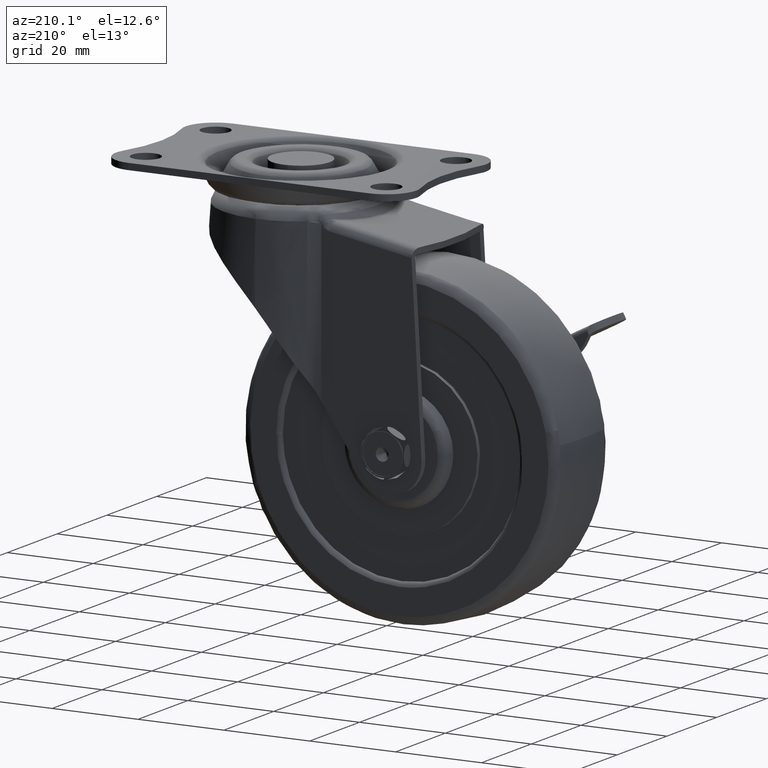
[diagram: clean part render]
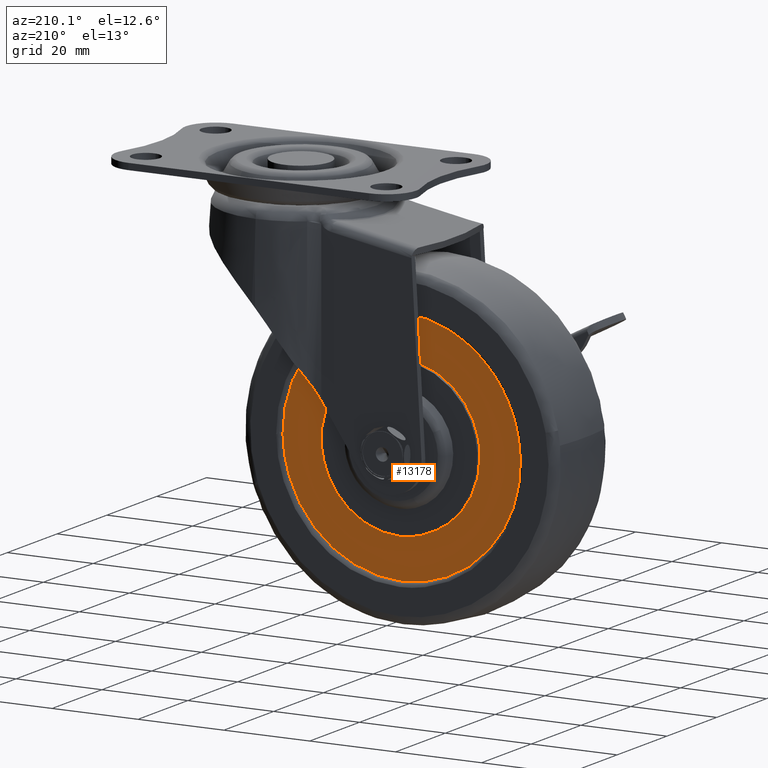
[diagram: same view with one face highlighted and labeled with its STEP entity id]
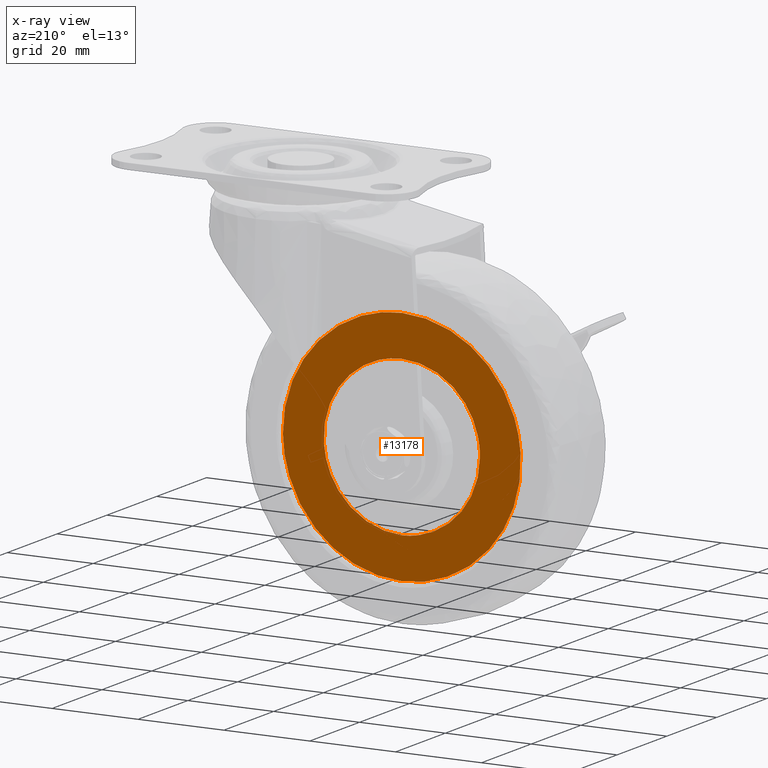
[diagram: x-ray of the same camera — body ghosted, the highlighted face saturated]
A machine part, auxiliary view. The second image highlights one B-rep face of the part: STEP entity #13178.
The next image is the same camera in x-ray: the body ghosted, the highlighted face saturated — about 0% of this face is hidden behind the body in this view.
In plain terms, the highlighted face is a freeform B-spline surface patch.
Its self-contained STEP definition (entity closure, byte-faithful):
#11346=CARTESIAN_POINT('',(-47.198564004429393,9.500000002880958,-52.771294061468822));
#11347=VERTEX_POINT('',#11346);
#11361=CARTESIAN_POINT('',(-29.0,9.500000000000000,-34.799995000000003));
#11362=VERTEX_POINT('',#11361);
#11363=CARTESIAN_POINT('',(-29.0,9.500000000000000,-34.799995000000003));
#11364=CARTESIAN_POINT('',(-46.972718111650863,9.500000000000000,-34.799995000000010));
#11365=CARTESIAN_POINT('',(-47.198564004429386,9.500000002880958,-52.771294061468815));
#11373=(BOUNDED_CURVE()B_SPLINE_CURVE(2,(#11363,#11364,#11365),.UNSPECIFIED.,.F.,.U.)B_SPLINE_CURVE_WITH_KNOTS((3,3),(0.500000000000000,0.747784295920024),.UNSPECIFIED.)CURVE()GEOMETRIC_REPRESENTATION_ITEM()RATIONAL_B_SPLINE_CURVE((1.0,0.709702639986237,0.994854295640090))REPRESENTATION_ITEM(''));
#11374=EDGE_CURVE('',#11362,#11347,#11373,.T.);
#11376=CARTESIAN_POINT('',(-10.844303738539400,9.500000002775501,-54.269141248419800));
#11377=VERTEX_POINT('',#11376);
#11378=CARTESIAN_POINT('',(-10.844303738539406,9.500000002775501,-54.269141248419800));
#11379=CARTESIAN_POINT('',(-10.799998999999998,9.500000000000000,-53.635341943842434));
#11380=CARTESIAN_POINT('',(-10.799999000000000,9.500000000000000,-52.999996000000003));
#11381=CARTESIAN_POINT('',(-10.799999000000001,9.500000000000000,-34.799994999999996));
#11382=CARTESIAN_POINT('',(-29.0,9.500000000000000,-34.799995000000003));
#11390=(BOUNDED_CURVE()B_SPLINE_CURVE(2,(#11378,#11379,#11380,#11381,#11382),.UNSPECIFIED.,.F.,.U.)B_SPLINE_CURVE_WITH_KNOTS((3,2,3),(0.237833686534879,0.250000000000000,0.500000000000000),.UNSPECIFIED.)CURVE()GEOMETRIC_REPRESENTATION_ITEM()RATIONAL_B_SPLINE_CURVE((0.972879876386525,0.985746277152429,1.0,0.707106781186548,1.0))REPRESENTATION_ITEM(''));
#11391=EDGE_CURVE('',#11377,#11362,#11390,.T.);
#11448=CARTESIAN_POINT('',(-29.0,9.500000000000000,-71.199996999999996));
#11449=VERTEX_POINT('',#11448);
#11450=CARTESIAN_POINT('',(-29.0,9.500000000000000,-71.199996999999996));
#11451=CARTESIAN_POINT('',(-12.027828447236004,9.500000000000000,-71.199996999999996));
#11452=CARTESIAN_POINT('',(-10.844303738539407,9.500000002775501,-54.269141248419800));
#11460=(BOUNDED_CURVE()B_SPLINE_CURVE(2,(#11450,#11451,#11452),.UNSPECIFIED.,.F.,.U.)B_SPLINE_CURVE_WITH_KNOTS((3,3),(0.0,0.237833686534878),.UNSPECIFIED.)CURVE()GEOMETRIC_REPRESENTATION_ITEM()RATIONAL_B_SPLINE_CURVE((1.0,0.721360504034119,0.972879876386525))REPRESENTATION_ITEM(''));
#11461=EDGE_CURVE('',#11449,#11377,#11460,.T.);
#11463=CARTESIAN_POINT('',(-47.198564004429386,9.500000002880958,-52.771294061468829));
#11464=CARTESIAN_POINT('',(-47.200001000000007,9.500000000000000,-52.885640516176196));
#11465=CARTESIAN_POINT('',(-47.200001000000007,9.500000000000000,-52.999996000000003));
#11466=CARTESIAN_POINT('',(-47.200001000000000,9.500000000000000,-71.199996999999996));
#11467=CARTESIAN_POINT('',(-29.0,9.500000000000000,-71.199996999999996));
#11475=(BOUNDED_CURVE()B_SPLINE_CURVE(2,(#11463,#11464,#11465,#11466,#11467),.UNSPECIFIED.,.F.,.U.)B_SPLINE_CURVE_WITH_KNOTS((3,2,3),(0.747784295920025,0.750000000000000,1.0),.UNSPECIFIED.)CURVE()GEOMETRIC_REPRESENTATION_ITEM()RATIONAL_B_SPLINE_CURVE((0.994854295640092,0.997404141200312,1.0,0.707106781186548,1.0))REPRESENTATION_ITEM(''));
#11476=EDGE_CURVE('',#11347,#11449,#11475,.T.);
#12727=CARTESIAN_POINT('',(-56.632570162942528,9.500000003655693,-51.068384861582231));
#12728=VERTEX_POINT('',#12727);
#12742=CARTESIAN_POINT('',(-29.0,9.500000000000000,-80.699996999999996));
#12743=VERTEX_POINT('',#12742);
#12744=CARTESIAN_POINT('',(-56.632570162942528,9.500000003655693,-51.068384861582231));
#12745=CARTESIAN_POINT('',(-56.700001000000007,9.500000000000002,-52.033013455316429));
#12746=CARTESIAN_POINT('',(-56.700001000000000,9.500000000000000,-52.999996000000003));
#12747=CARTESIAN_POINT('',(-56.700001000000007,9.500000000000000,-80.699996999999996));
#12748=CARTESIAN_POINT('',(-29.0,9.500000000000000,-80.699996999999996));
#12756=(BOUNDED_CURVE()B_SPLINE_CURVE(2,(#12744,#12745,#12746,#12747,#12748),.UNSPECIFIED.,.F.,.U.)B_SPLINE_CURVE_WITH_KNOTS((3,2,3),(0.737833686534577,0.750000000000000,1.0),.UNSPECIFIED.)CURVE()GEOMETRIC_REPRESENTATION_ITEM()RATIONAL_B_SPLINE_CURVE((0.972879876385888,0.985746277152075,1.0,0.707106781186548,1.0))REPRESENTATION_ITEM(''));
#12757=EDGE_CURVE('',#12728,#12743,#12756,.T.);
#12759=CARTESIAN_POINT('',(-1.302186075634266,9.500000003650451,-53.348075317415287));
#12760=VERTEX_POINT('',#12759);
#12761=CARTESIAN_POINT('',(-29.0,9.500000000000000,-80.699996999999996));
#12762=CARTESIAN_POINT('',(-1.645918554214269,9.500000000000000,-80.699996999999968));
#12763=CARTESIAN_POINT('',(-1.302186075634266,9.500000003650451,-53.348075317415301));
#12771=(BOUNDED_CURVE()B_SPLINE_CURVE(2,(#12761,#12762,#12763),.UNSPECIFIED.,.F.,.U.)B_SPLINE_CURVE_WITH_KNOTS((3,3),(0.0,0.247784295920707),.UNSPECIFIED.)CURVE()GEOMETRIC_REPRESENTATION_ITEM()RATIONAL_B_SPLINE_CURVE((1.0,0.709702639985436,0.994854295641663))REPRESENTATION_ITEM(''));
#12772=EDGE_CURVE('',#12743,#12760,#12771,.T.);
#12859=CARTESIAN_POINT('',(-29.0,9.500000000000000,-25.299994999999999));
#12860=VERTEX_POINT('',#12859);
#12861=CARTESIAN_POINT('',(-1.302186075634266,9.500000003650451,-53.348075317415294));
#12862=CARTESIAN_POINT('',(-1.299999000000003,9.499999999999998,-53.174042529739012));
#12863=CARTESIAN_POINT('',(-1.299999000000003,9.500000000000000,-52.999996000000003));
#12864=CARTESIAN_POINT('',(-1.299999000000007,9.500000000000000,-25.299995000000003));
#12865=CARTESIAN_POINT('',(-29.0,9.500000000000000,-25.299994999999999));
#12873=(BOUNDED_CURVE()B_SPLINE_CURVE(2,(#12861,#12862,#12863,#12864,#12865),.UNSPECIFIED.,.F.,.U.)B_SPLINE_CURVE_WITH_KNOTS((3,2,3),(0.247784295920707,0.250000000000000,0.500000000000000),.UNSPECIFIED.)CURVE()GEOMETRIC_REPRESENTATION_ITEM()RATIONAL_B_SPLINE_CURVE((0.994854295641663,0.997404141201112,1.0,0.707106781186548,1.0))REPRESENTATION_ITEM(''));
#12874=EDGE_CURVE('',#12760,#12860,#12873,.T.);
#12876=CARTESIAN_POINT('',(-29.0,9.500000000000000,-25.299994999999999));
#12877=CARTESIAN_POINT('',(-54.831271601738173,9.500000000000000,-25.299995000000010));
#12878=CARTESIAN_POINT('',(-56.632570162942528,9.500000003655693,-51.068384861582231));
#12886=(BOUNDED_CURVE()B_SPLINE_CURVE(2,(#12876,#12877,#12878),.UNSPECIFIED.,.F.,.U.)B_SPLINE_CURVE_WITH_KNOTS((3,3),(0.500000000000000,0.737833686534576),.UNSPECIFIED.)CURVE()GEOMETRIC_REPRESENTATION_ITEM()RATIONAL_B_SPLINE_CURVE((1.0,0.721360504034473,0.972879876385886))REPRESENTATION_ITEM(''));
#12887=EDGE_CURVE('',#12860,#12728,#12886,.T.);
#13161=CARTESIAN_POINT('',(-59.463805376033491,9.500000000000000,-22.532765527531549));
#13162=CARTESIAN_POINT('',(-59.463805376033491,9.500000000000000,-83.467228453726918));
#13163=CARTESIAN_POINT('',(1.464778386229634,9.500000000000000,-22.532765527531549));
#13164=CARTESIAN_POINT('',(1.464778386229634,9.500000000000000,-83.467228453726918));
#13165=B_SPLINE_SURFACE_WITH_KNOTS('',1,1,((#13161,#13163),(#13162,#13164)),.UNSPECIFIED.,.F.,.F.,.U.,(2,2),(2,2),(0.0,60.934462926195373),(0.0,60.928583762263123),.UNSPECIFIED.);
#13166=ORIENTED_EDGE('',*,*,#12757,.F.);
#13167=ORIENTED_EDGE('',*,*,#12887,.F.);
#13168=ORIENTED_EDGE('',*,*,#12874,.F.);
#13169=ORIENTED_EDGE('',*,*,#12772,.F.);
#13170=EDGE_LOOP('',(#13166,#13167,#13168,#13169));
#13171=FACE_OUTER_BOUND('',#13170,.T.);
#13172=ORIENTED_EDGE('',*,*,#11374,.T.);
#13173=ORIENTED_EDGE('',*,*,#11476,.T.);
#13174=ORIENTED_EDGE('',*,*,#11461,.T.);
#13175=ORIENTED_EDGE('',*,*,#11391,.T.);
#13176=EDGE_LOOP('',(#13172,#13173,#13174,#13175));
#13177=FACE_BOUND('',#13176,.T.);
#13178=ADVANCED_FACE('',(#13171,#13177),#13165,.F.);